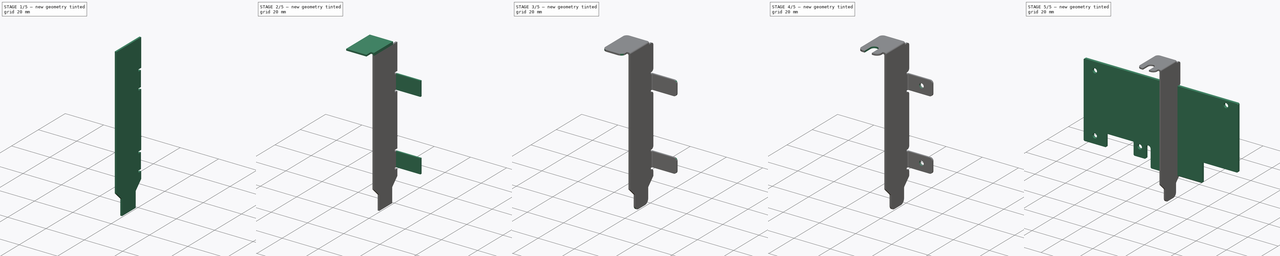
[diagram: build sequence overview — one tinted view per stage of 5, left to right]
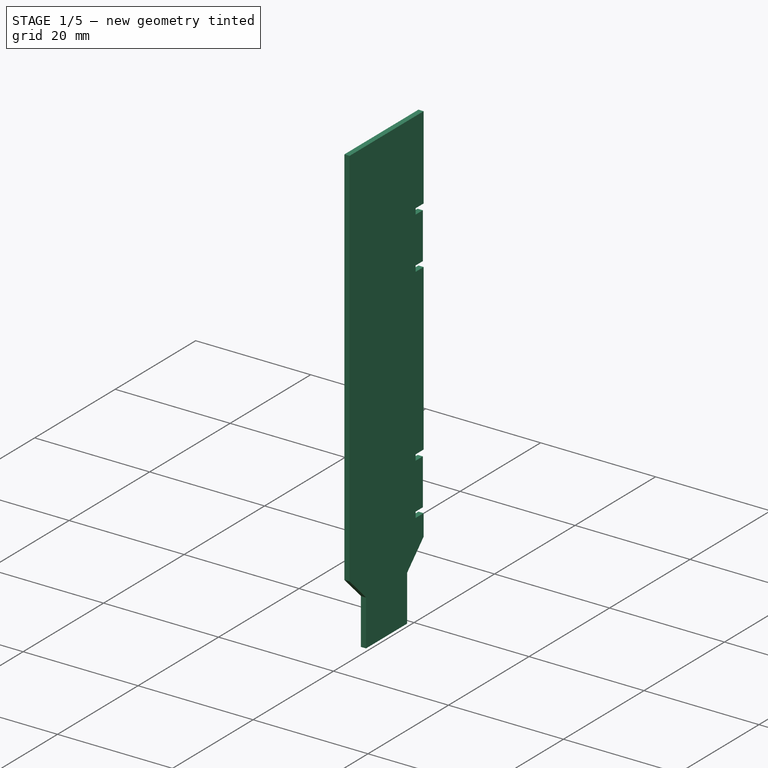
[diagram: stage 1 of 5 — iso view after this stage's code; geometry added in this stage tinted green]
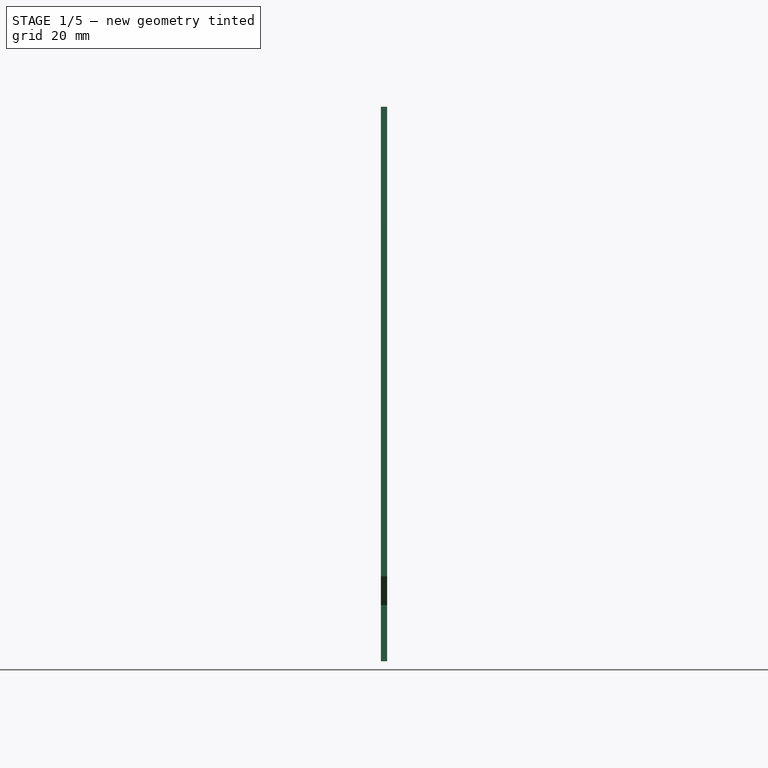
[diagram: stage 1 of 5 — front view after this stage's code; geometry added in this stage tinted green]
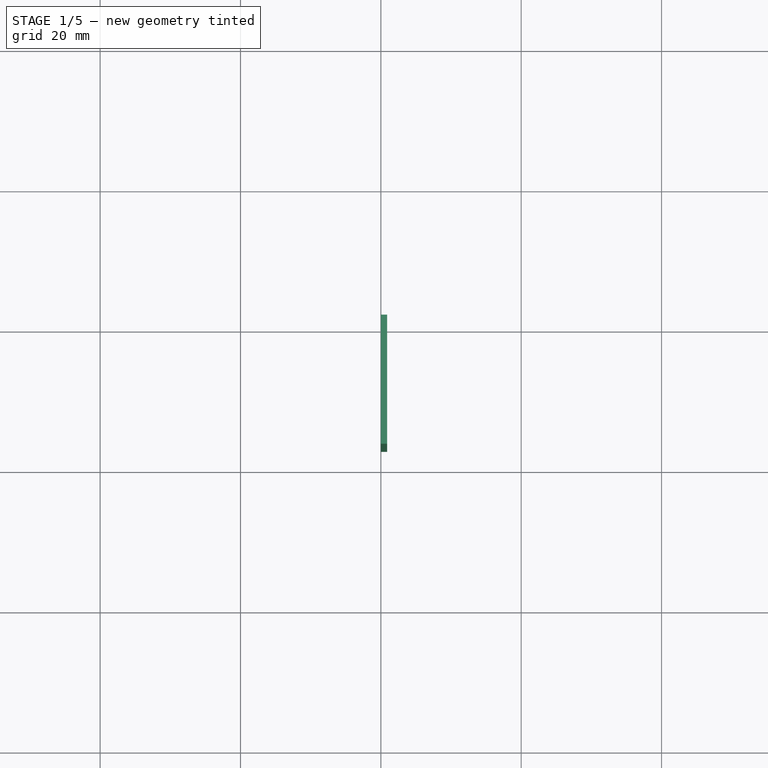
[diagram: stage 1 of 5 — top view after this stage's code; geometry added in this stage tinted green]
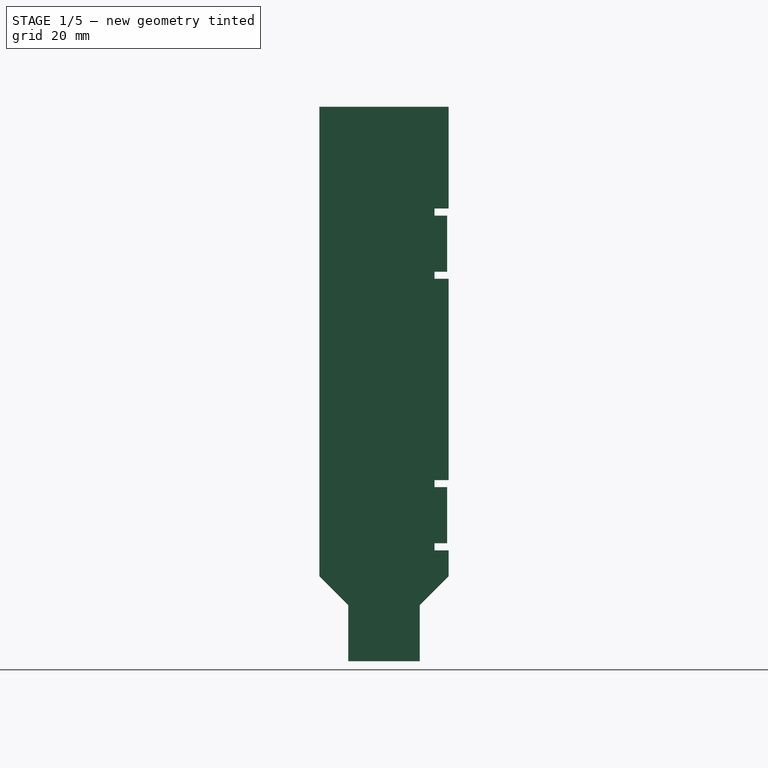
[diagram: stage 1 of 5 — right view after this stage's code; geometry added in this stage tinted green]
FCSTD DOCUMENT  (FreeCAD 0.17R13541 (Git))
Label: pcie_4x
License: All rights reserved
LicenseURL: http://en.wikipedia.org/wiki/All_rights_reserved
objects: Sketcher::SketchObject×11, PartDesign::Pad×7, PartDesign::Pocket×6, PartDesign::Fillet×6, PartDesign::Chamfer×2, PartDesign::Body×2, App::Part×2
note: 47 computed .brp shape members not serialized (recipe doc carries the construction recipe); baked Part::Feature solids carry a one-line shape summary decoded from their .brp

FEATURE [PartDesign::Body] Body  label="PCB"
  Group = -> [Sketch,Pad,Chamfer,Chamfer001,Sketch001,Pocket]
  Origin = -> Origin001
  Tip = -> Pocket
FEATURE [App::Part] Part  label="pcie_4x"
  Group = -> [Body]
  License = CC BY 3.0
  LicenseURL = http://creativecommons.org/licenses/by/3.0/
  Origin = -> Origin
FEATURE [Sketcher::SketchObject] Sketch002
  MapMode = 5
  Placement = pos=(0,0,0) rot=(0.57735,0.57735,0.57735;2.0944rad)
  Support = -> [YZ_Plane003]
  expr: Constraints[23] = 0.20000000000000001 + 0.90000000000000002
  expr: Constraints[20] = 45 + 90
  expr: Constraints[22] = 11.4 - 3
  sketch-geometry (8):
    g0: LineSegment StartX=1.1 StartY=3.7 StartZ=0 EndX=1.1 EndY=70.6 EndZ=0
    g1: LineSegment StartX=1.1 StartY=70.6 StartZ=0 EndX=-17.3 EndY=70.6 EndZ=0
    g2: LineSegment StartX=-17.3 StartY=70.6 StartZ=0 EndX=-17.3 EndY=3.7 EndZ=0
    g3: LineSegment StartX=-17.3 StartY=3.7 StartZ=0 EndX=-13.2 EndY=-0.4 EndZ=0
    g4: LineSegment StartX=-13.2 StartY=-0.4 StartZ=0 EndX=-13.2 EndY=-8.4 EndZ=0
    g5: LineSegment StartX=-13.2 StartY=-8.4 StartZ=0 EndX=-3 EndY=-8.4 EndZ=0
    g6: LineSegment StartX=-3 StartY=-8.4 StartZ=0 EndX=-3 EndY=-0.4 EndZ=0
    g7: LineSegment StartX=-3 StartY=-0.4 StartZ=0 EndX=1.1 EndY=3.7 EndZ=0
  constraints (24):
    c: Vertical(g0)
    c: Coincident(g0,g1)
    c: Horizontal(g1)
    c: Coincident(g1,g2)
    c: Vertical(g2)
    c: Coincident(g2,g3)
    c: Coincident(g3,g4)
    c: Vertical(g4)
    c: Coincident(g4,g5)
    c: Horizontal(g5)
    c: Coincident(g5,g6)
    c: Vertical(g6)
    c: Coincident(g6,g7)
    c: Coincident(g0,g7)
    c: Distance(g1) = 18.4
    c: DistanceY(g4,g1) = 79
    c: Equal(g2,g0)
    c: Equal(g4,g6)
    c: Distance(g4) = 8
    c: Equal(g3,g7)
    c: Angle(g3,g4) = 2.35619
    c: Distance(g5) = 10.2
    c: DistanceY(g5,g-1) = 8.4
    c: DistanceX(g-1,g0) = 1.1
FEATURE [PartDesign::Pad] Pad001
  Length = 0.9
  Length2 = 100
  Placement = pos=(0,0,0) rot=(0.57735,0.57735,0.57735;2.0944rad)
  Profile = -> Sketch002
  Type = 0
FEATURE [Sketcher::SketchObject] Sketch003
  ExternalGeometry = -> [Pad001]
  MapMode = 5
  Placement = pos=(0,1.1,0) rot=(0.57735,0.57735,0.57735;4.18879rad)
  Support = -> [Pad001]
  sketch-geometry (16):
    g0: LineSegment StartX=56.1 StartY=0.9 StartZ=0 EndX=55.1 EndY=0.9 EndZ=0
    g1: LineSegment StartX=55.1 StartY=0.9 StartZ=0 EndX=55.1 EndY=0 EndZ=0
    g2: LineSegment StartX=55.1 StartY=0 StartZ=0 EndX=56.1 EndY=0 EndZ=0
    g3: LineSegment StartX=56.1 StartY=0 StartZ=0 EndX=56.1 EndY=0.9 EndZ=0
    g4: LineSegment StartX=47.1 StartY=0.9 StartZ=0 EndX=46.1 EndY=0.9 EndZ=0
    g5: LineSegment StartX=46.1 StartY=0.9 StartZ=0 EndX=46.1 EndY=0 EndZ=0
    g6: LineSegment StartX=46.1 StartY=0 StartZ=0 EndX=47.1 EndY=0 EndZ=0
    g7: LineSegment StartX=47.1 StartY=0 StartZ=0 EndX=47.1 EndY=0.9 EndZ=0
    g8: LineSegment StartX=7.4 StartY=0.9 StartZ=0 EndX=8.4 EndY=0.9 EndZ=0
    g9: LineSegment StartX=8.4 StartY=0.9 StartZ=0 EndX=8.4 EndY=0 EndZ=0
    g10: LineSegment StartX=8.4 StartY=0 StartZ=0 EndX=7.4 EndY=0 EndZ=0
    g11: LineSegment StartX=7.4 StartY=0 StartZ=0 EndX=7.4 EndY=0.9 EndZ=0
    g12: LineSegment StartX=17.4 StartY=0.9 StartZ=0 EndX=16.4 EndY=0.9 EndZ=0
    g13: LineSegment StartX=16.4 StartY=0.9 StartZ=0 EndX=16.4 EndY=0 EndZ=0
    g14: LineSegment StartX=16.4 StartY=0 StartZ=0 EndX=17.4 EndY=0 EndZ=0
    g15: LineSegment StartX=17.4 StartY=0 StartZ=0 EndX=17.4 EndY=0.9 EndZ=0
  constraints (48):
    c: Coincident(g0,g1)
    c: Coincident(g1,g2)
    c: Coincident(g2,g3)
    c: Coincident(g3,g0)
    c: Horizontal(g0)
    c: Horizontal(g2)
    c: Vertical(g1)
    c: Vertical(g3)
    c: PointOnObject(g0,g-3)
    c: PointOnObject(g1,g-4)
    c: Coincident(g4,g5)
    c: Coincident(g5,g6)
    c: Coincident(g6,g7)
    c: Coincident(g7,g4)
    c: Horizontal(g4)
    c: Horizontal(g6)
    c: Vertical(g5)
    c: Vertical(g7)
    c: PointOnObject(g4,g-3)
    c: PointOnObject(g5,g-4)
    c: Coincident(g8,g9)
    c: Coincident(g9,g10)
    c: Coincident(g10,g11)
    c: Coincident(g11,g8)
    c: Horizontal(g8)
    c: Horizontal(g10)
    c: Vertical(g9)
    c: Vertical(g11)
    c: PointOnObject(g8,g-3)
    c: PointOnObject(g9,g-4)
    c: Coincident(g12,g13)
    c: Coincident(g13,g14)
    c: Coincident(g14,g15)
    c: Coincident(g15,g12)
    c: Horizontal(g12)
    c: Horizontal(g14)
    c: Vertical(g13)
    c: Vertical(g15)
    c: PointOnObject(g12,g-3)
    c: PointOnObject(g13,g-4)
    c: Distance(g0) = 1
    c: Equal(g0,g4)
    c: Equal(g4,g12)
    c: Equal(g12,g8)
    c: DistanceX(g4,g0) = 8
    c: DistanceX(g0,g-5) = 15.5
    c: DistanceX(g8,g0) = 46.7
    c: DistanceX(g8,g12) = 8
FEATURE [PartDesign::Pocket] Pocket001
  BaseFeature = -> Pad001
  Length = 2
  Length2 = 100
  Placement = pos=(0,0,0) rot=(0.57735,0.57735,0.57735;2.0944rad)
  Profile = -> Sketch003
  Type = 0
FEATURE [PartDesign::Pocket] Pocket002
  BaseFeature = -> Pocket001
  Length = 0.2
  Length2 = 100
  Placement = pos=(0,0,0) rot=(0.57735,0.57735,0.57735;2.0944rad)
  Profile = -> Pocket001 [Face16]
  Type = 0
FEATURE [PartDesign::Pocket] Pocket003
  BaseFeature = -> Pocket002
  Length = 0.2
  Length2 = 100
  Placement = pos=(0,0,0) rot=(0.57735,0.57735,0.57735;2.0944rad)
  Profile = -> Pocket002 [Face24]
  Type = 0
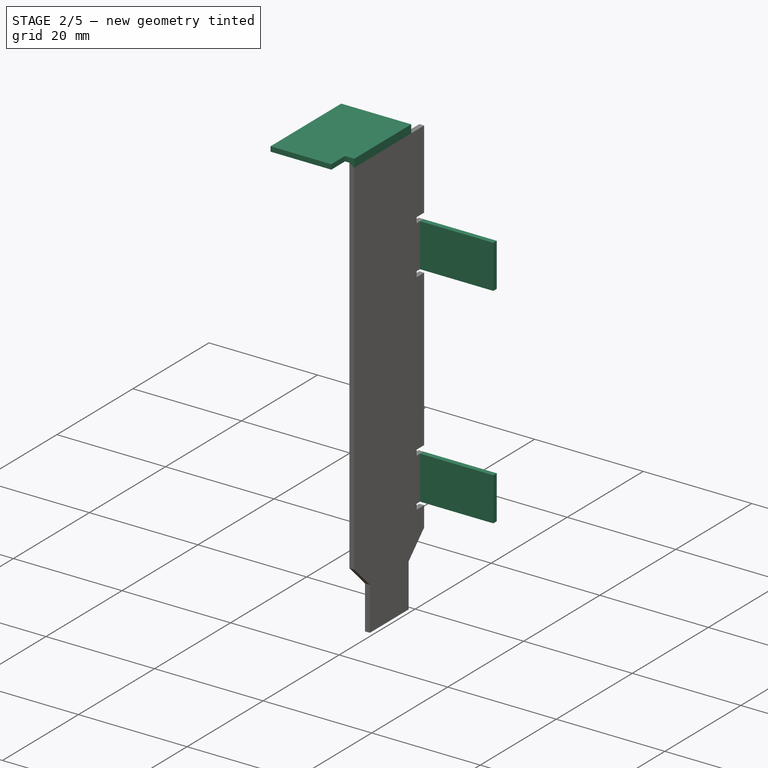
[diagram: stage 2 of 5 — iso view after this stage's code; geometry added in this stage tinted green]
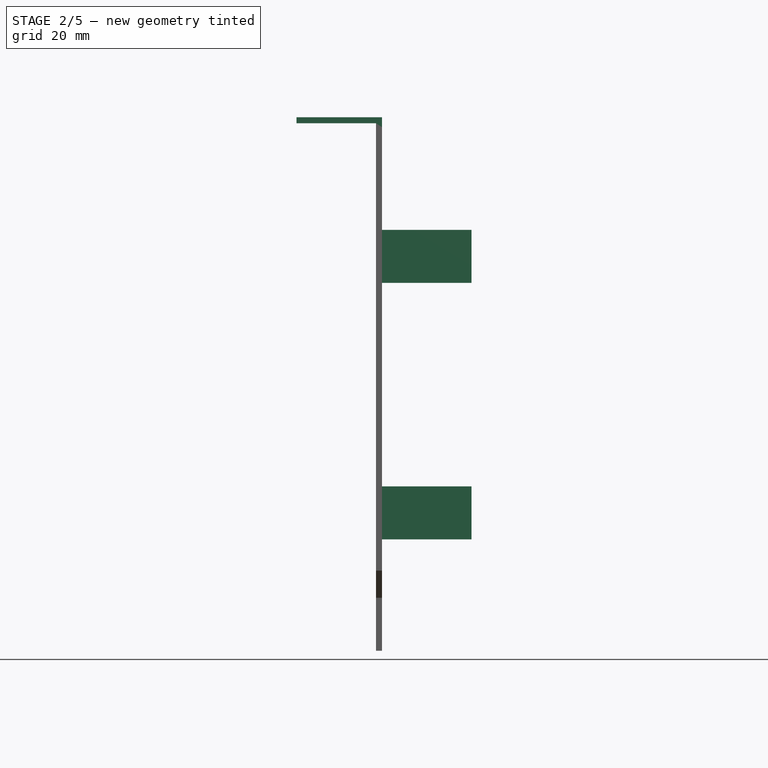
[diagram: stage 2 of 5 — front view after this stage's code; geometry added in this stage tinted green]
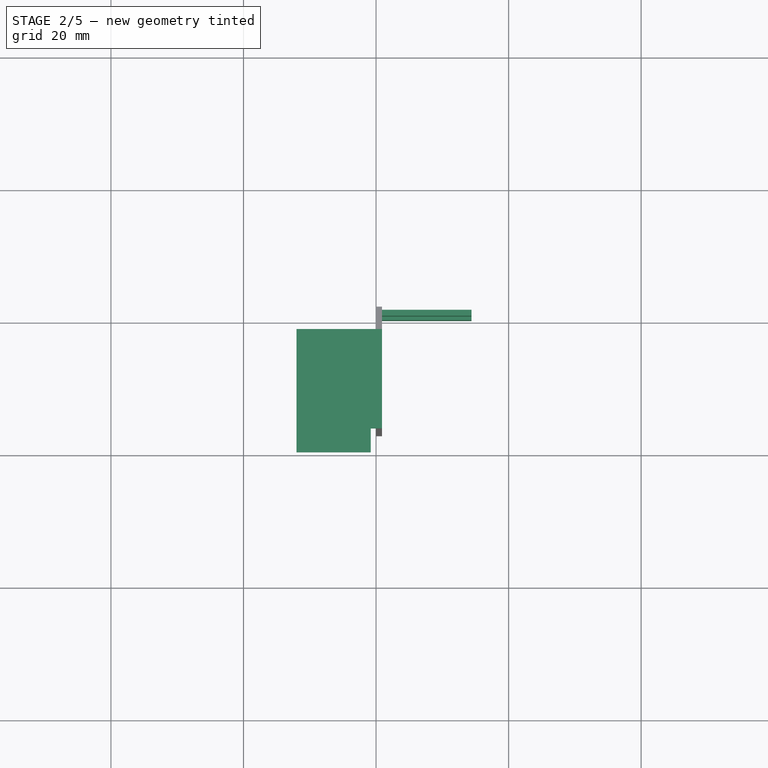
[diagram: stage 2 of 5 — top view after this stage's code; geometry added in this stage tinted green]
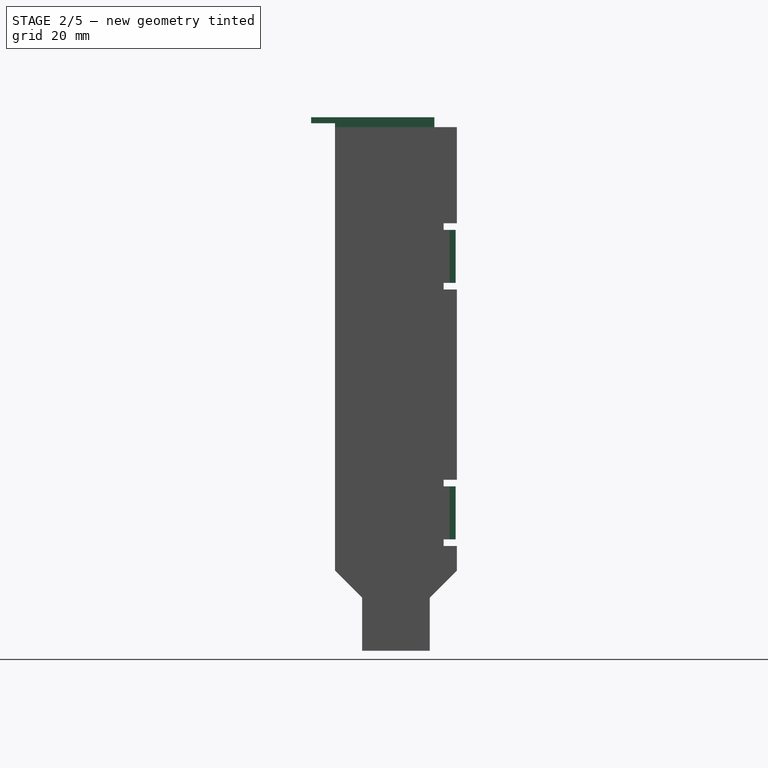
[diagram: stage 2 of 5 — right view after this stage's code; geometry added in this stage tinted green]
FEATURE [Sketcher::SketchObject] Sketch004
  ExternalGeometry = -> [Pocket003]
  MapMode = 5
  Placement = pos=(0.9,0,0) rot=(0.57735,0.57735,0.57735;2.0944rad)
  Support = -> [Pocket003]
  sketch-geometry (8):
    g0: LineSegment StartX=0 StartY=55.1 StartZ=0 EndX=0.9 EndY=55.1 EndZ=0
    g1: LineSegment StartX=0.9 StartY=55.1 StartZ=0 EndX=0.9 EndY=47.1 EndZ=0
    g2: LineSegment StartX=0.9 StartY=47.1 StartZ=0 EndX=0 EndY=47.1 EndZ=0
    g3: LineSegment StartX=0 StartY=47.1 StartZ=0 EndX=0 EndY=55.1 EndZ=0
    g4: LineSegment StartX=0 StartY=16.4 StartZ=0 EndX=0.9 EndY=16.4 EndZ=0
    g5: LineSegment StartX=0.9 StartY=16.4 StartZ=0 EndX=0.9 EndY=8.4 EndZ=0
    g6: LineSegment StartX=0.9 StartY=8.4 StartZ=0 EndX=0 EndY=8.4 EndZ=0
    g7: LineSegment StartX=0 StartY=8.4 StartZ=0 EndX=0 EndY=16.4 EndZ=0
  constraints (22):
    c: Coincident(g0,g1)
    c: Coincident(g1,g2)
    c: Coincident(g2,g3)
    c: Coincident(g3,g0)
    c: Horizontal(g0)
    c: Horizontal(g2)
    c: Vertical(g1)
    c: Vertical(g3)
    c: Coincident(g4,g5)
    c: Coincident(g5,g6)
    c: Coincident(g6,g7)
    c: Coincident(g7,g4)
    c: Horizontal(g4)
    c: Horizontal(g6)
    c: Vertical(g5)
    c: Vertical(g7)
    c: Coincident(g0,g-3)
    c: Coincident(g1,g-3)
    c: Coincident(g4,g-4)
    c: Coincident(g5,g-4)
    c: Equal(g2,g4)
    c: Distance(g0) = 0.9
FEATURE [PartDesign::Pad] Pad002
  BaseFeature = -> Pocket003
  Length = 13.5
  Length2 = 100
  Placement = pos=(0,0,0) rot=(0.57735,0.57735,0.57735;2.0944rad)
  Profile = -> Sketch004
  Type = 0
  expr: Length = 14.4 - 0.90000000000000002
FEATURE [Sketcher::SketchObject] Sketch005
  ExternalGeometry = -> [Pad002]
  MapMode = 5
  Placement = pos=(0,0,70.6) rot=(0,0,-1;1.5708rad)
  Support = -> [Pad002]
  sketch-geometry (4):
    g0: LineSegment StartX=17.3 StartY=0.9 StartZ=0 EndX=2.3 EndY=0.9 EndZ=0
    g1: LineSegment StartX=2.3 StartY=0.9 StartZ=0 EndX=2.3 EndY=0 EndZ=0
    g2: LineSegment StartX=2.3 StartY=0 StartZ=0 EndX=17.3 EndY=0 EndZ=0
    g3: LineSegment StartX=17.3 StartY=0 StartZ=0 EndX=17.3 EndY=0.9 EndZ=0
  constraints (11):
    c: Coincident(g0,g1)
    c: Coincident(g1,g2)
    c: Coincident(g2,g3)
    c: Coincident(g3,g0)
    c: Horizontal(g0)
    c: Horizontal(g2)
    c: Vertical(g1)
    c: Vertical(g3)
    c: Coincident(g-3,g0)
    c: Coincident(g-3,g2)
    c: Distance(g0) = 15
FEATURE [PartDesign::Pad] Pad003
  BaseFeature = -> Pad002
  Length = 1.5
  Length2 = 100
  Placement = pos=(0,0,0) rot=(0.57735,0.57735,0.57735;2.0944rad)
  Profile = -> Sketch005
  Type = 0
FEATURE [Sketcher::SketchObject] Sketch006
  ExternalGeometry = -> [Pad003]
  MapMode = 5
  Placement = pos=(0,0,0) rot=(0.57735,0.57735,-0.57735;4.18879rad)
  Support = -> [Pad003]
  sketch-geometry (4):
    g0: LineSegment StartX=-17.3 StartY=-71.2 StartZ=0 EndX=-2.3 EndY=-71.2 EndZ=0
    g1: LineSegment StartX=-2.3 StartY=-71.2 StartZ=0 EndX=-2.3 EndY=-72.1 EndZ=0
    g2: LineSegment StartX=-2.3 StartY=-72.1 StartZ=0 EndX=-17.3 EndY=-72.1 EndZ=0
    g3: LineSegment StartX=-17.3 StartY=-72.1 StartZ=0 EndX=-17.3 EndY=-71.2 EndZ=0
  constraints (11):
    c: Coincident(g0,g1)
    c: Coincident(g1,g2)
    c: Coincident(g2,g3)
    c: Coincident(g3,g0)
    c: Horizontal(g0)
    c: Horizontal(g2)
    c: Vertical(g1)
    c: Vertical(g3)
    c: Coincident(g-3,g2)
    c: Coincident(g1,g-3)
    c: Distance(g1) = 0.9
FEATURE [PartDesign::Pad] Pad004
  BaseFeature = -> Pad003
  Length = 12
  Length2 = 100
  Placement = pos=(0,0,0) rot=(0.57735,0.57735,0.57735;2.0944rad)
  Profile = -> Sketch006
  Type = 0
FEATURE [Sketcher::SketchObject] Sketch007
  ExternalGeometry = -> [Pad004]
  MapMode = 5
  Placement = pos=(0,-17.3,0) rot=(0.57735,0.57735,-0.57735;2.0944rad)
  Support = -> [Pad004]
  sketch-geometry (4):
    g0: LineSegment StartX=-72.1 StartY=-0.8 StartZ=0 EndX=-71.2 EndY=-0.8 EndZ=0
    g1: LineSegment StartX=-71.2 StartY=-0.8 StartZ=0 EndX=-71.2 EndY=-12 EndZ=0
    g2: LineSegment StartX=-71.2 StartY=-12 StartZ=0 EndX=-72.1 EndY=-12 EndZ=0
    g3: LineSegment StartX=-72.1 StartY=-12 StartZ=0 EndX=-72.1 EndY=-0.8 EndZ=0
  constraints (11):
    c: Coincident(g0,g1)
    c: Coincident(g1,g2)
    c: Coincident(g2,g3)
    c: Coincident(g3,g0)
    c: Horizontal(g0)
    c: Horizontal(g2)
    c: Vertical(g1)
    c: Vertical(g3)
    c: Coincident(g-3,g2)
    c: Coincident(g-3,g1)
    c: Distance(g1) = 11.2
FEATURE [PartDesign::Pad] Pad005
  BaseFeature = -> Pad004
  Length = 3.6
  Length2 = 100
  Placement = pos=(0,0,0) rot=(0.57735,0.57735,0.57735;2.0944rad)
  Profile = -> Sketch007
  Type = 0
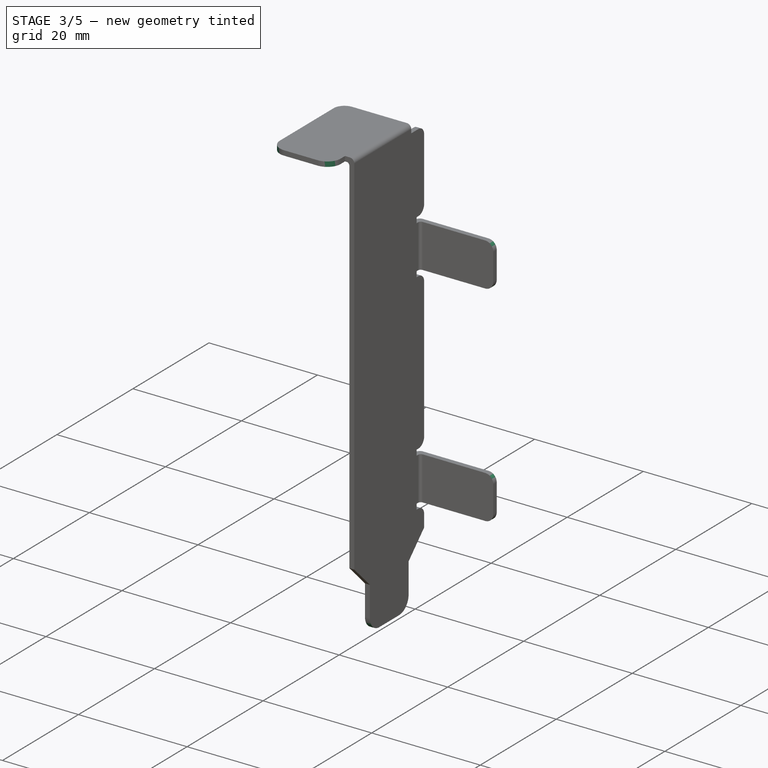
[diagram: stage 3 of 5 — iso view after this stage's code; geometry added in this stage tinted green]
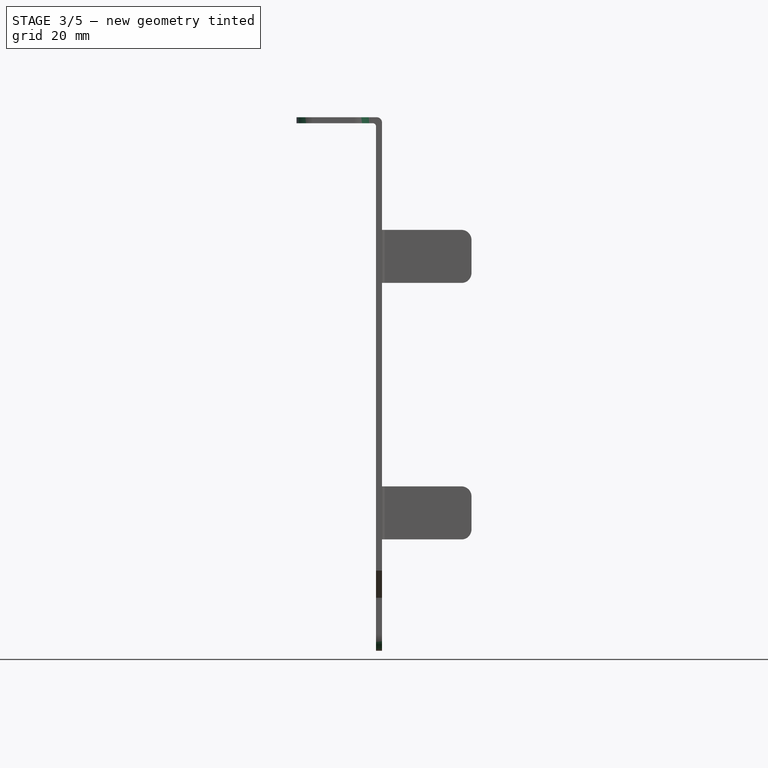
[diagram: stage 3 of 5 — front view after this stage's code; geometry added in this stage tinted green]
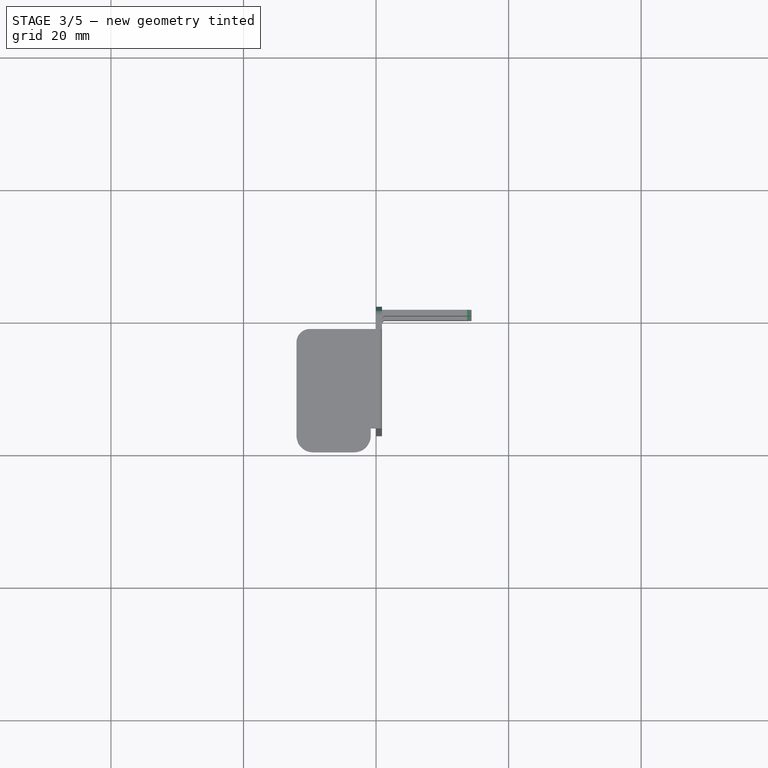
[diagram: stage 3 of 5 — top view after this stage's code; geometry added in this stage tinted green]
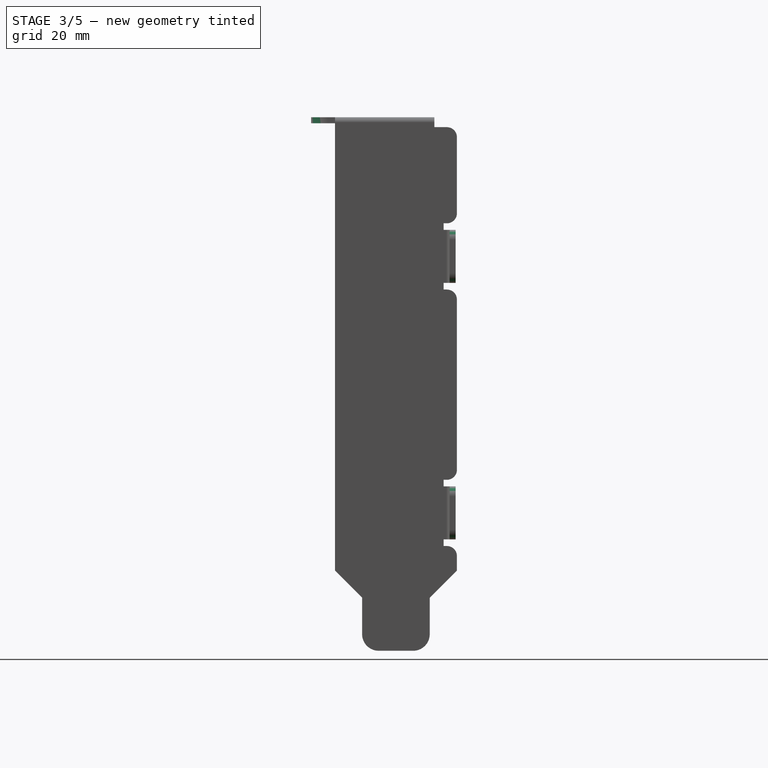
[diagram: stage 3 of 5 — right view after this stage's code; geometry added in this stage tinted green]
FEATURE [PartDesign::Fillet] Fillet
  Base = -> Pad005 [Edge46,Edge45,Edge61]
  BaseFeature = -> Pad005
  Placement = pos=(0,0,0) rot=(0.57735,0.57735,0.57735;2.0944rad)
  Radius = 0.5
FEATURE [PartDesign::Fillet] Fillet001
  Base = -> Fillet [Edge80,Edge95,Edge94]
  BaseFeature = -> Fillet
  Placement = pos=(0,0,0) rot=(0.57735,0.57735,0.57735;2.0944rad)
  Radius = 0.8
FEATURE [PartDesign::Fillet] Fillet002
  Base = -> Fillet001 [Edge63,Edge110,Edge113,Edge120,Edge68,Edge71,Edge73,Edge97,Edge96]
  BaseFeature = -> Fillet001
  Placement = pos=(0,0,0) rot=(0.57735,0.57735,0.57735;2.0944rad)
  Radius = 1.5
FEATURE [PartDesign::Fillet] Fillet003
  Base = -> Fillet002 [Edge158]
  BaseFeature = -> Fillet002
  Placement = pos=(0,0,0) rot=(0.57735,0.57735,0.57735;2.0944rad)
  Radius = 2
FEATURE [PartDesign::Fillet] Fillet004
  Base = -> Fillet003 [Edge34,Edge37,Edge119,Edge124]
  BaseFeature = -> Fillet003
  Placement = pos=(0,0,0) rot=(0.57735,0.57735,0.57735;2.0944rad)
  Radius = 2.5
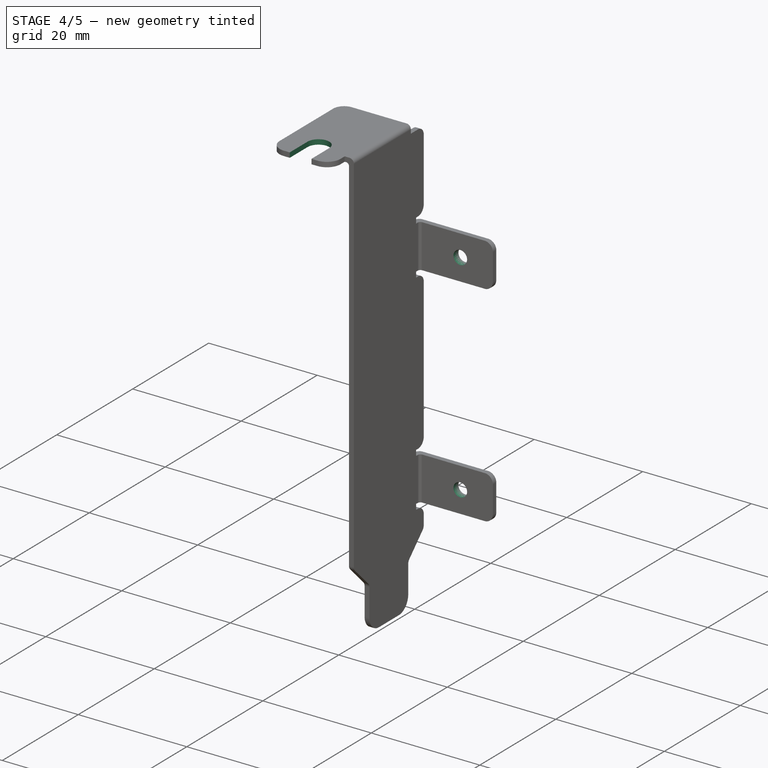
[diagram: stage 4 of 5 — iso view after this stage's code; geometry added in this stage tinted green]
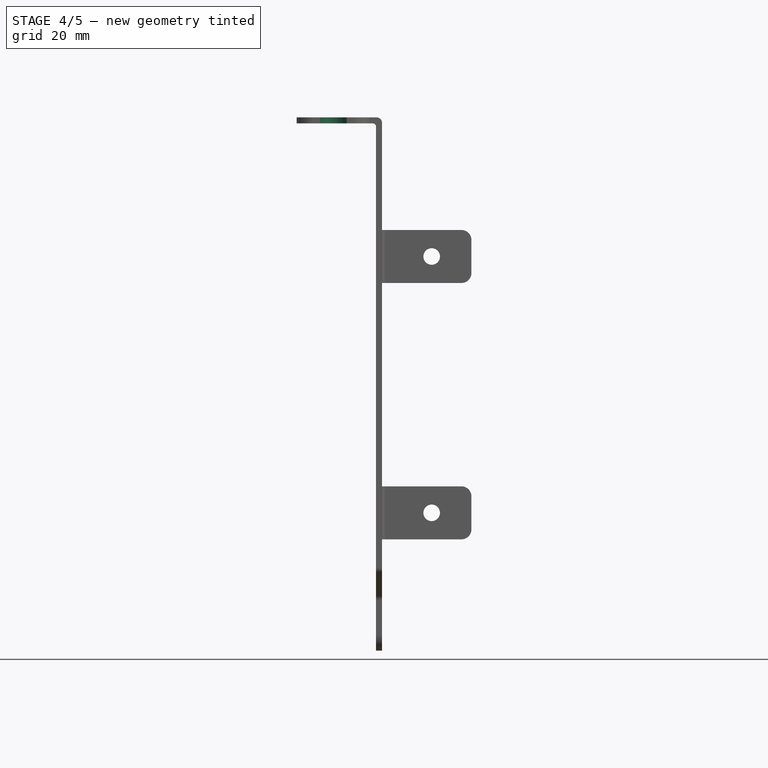
[diagram: stage 4 of 5 — front view after this stage's code; geometry added in this stage tinted green]
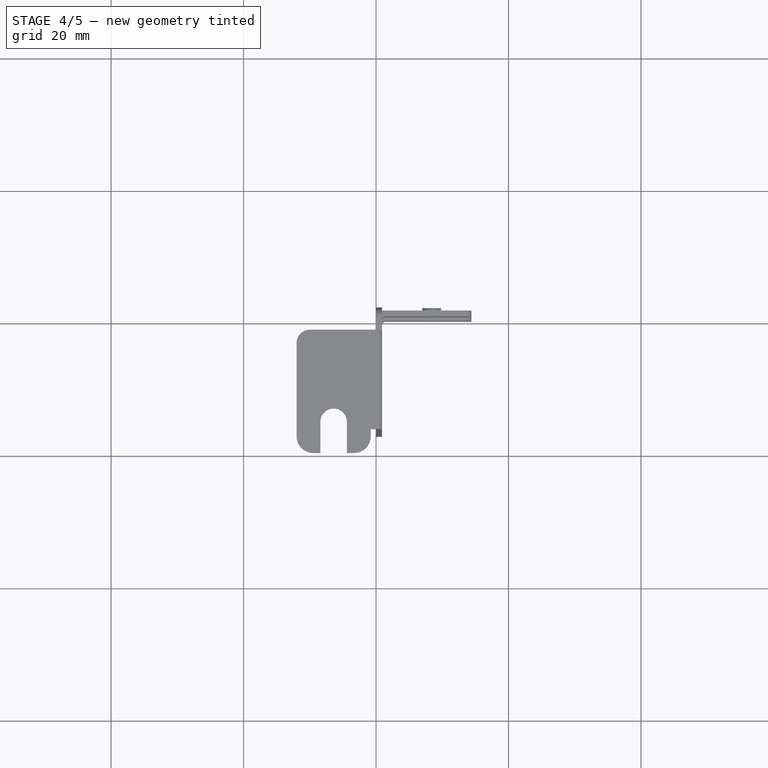
[diagram: stage 4 of 5 — top view after this stage's code; geometry added in this stage tinted green]
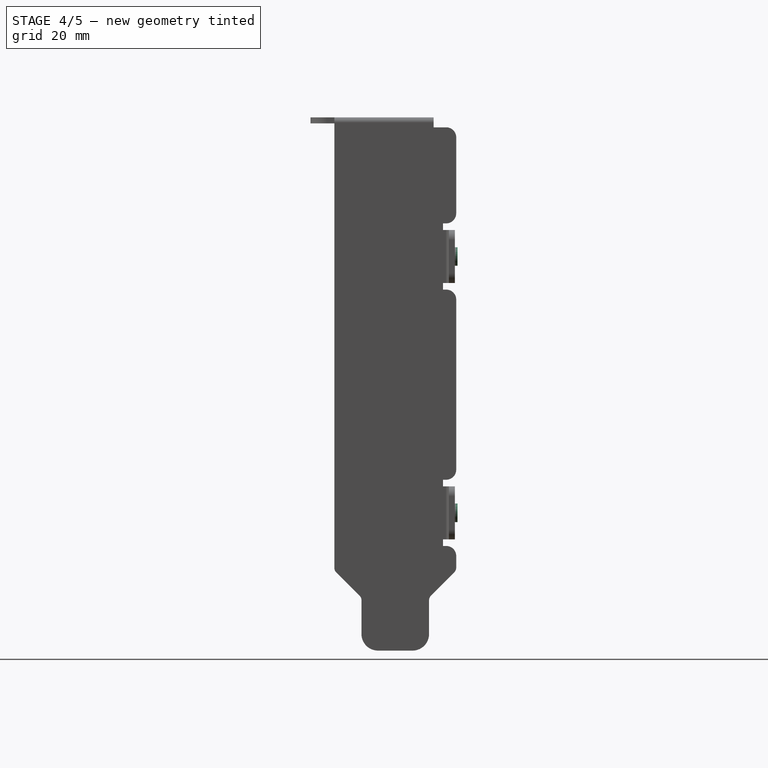
[diagram: stage 4 of 5 — right view after this stage's code; geometry added in this stage tinted green]
FEATURE [PartDesign::Fillet] Fillet005
  Base = -> Fillet004 [Edge121,Edge119,Edge54,Edge116]
  BaseFeature = -> Fillet004
  Placement = pos=(0,0,0) rot=(0.57735,0.57735,0.57735;2.0944rad)
  Radius = 1
FEATURE [Sketcher::SketchObject] Sketch008
  ExternalGeometry = -> [Fillet005]
  MapMode = 5
  Placement = pos=(0,0,72.1) rot=(0,0,-1;1.5708rad)
  Support = -> [Fillet005]
  sketch-geometry (5):
    g0: LineSegment StartX=20.9 StartY=-4.4 StartZ=0 EndX=16.2 EndY=-4.4 EndZ=0
    g1: LineSegment StartX=20.9 StartY=-8.4 StartZ=0 EndX=16.2 EndY=-8.4 EndZ=0
    g2: ArcOfCircle CenterX=16.2 CenterY=-6.4 CenterZ=0 NormalX=0 NormalY=0 NormalZ=1 AngleXU=0 Radius=2 StartAngle=1.5708 EndAngle=4.71239
    g3: GeomPoint X=20.9 Y=-6.4 Z=0
    g4: LineSegment StartX=20.9 StartY=-4.4 StartZ=0 EndX=20.9 EndY=-8.4 EndZ=0
  constraints (15):
    c: PointOnObject(g0,g-3)
    c: Horizontal(g0)
    c: PointOnObject(g1,g-3)
    c: Horizontal(g1)
    c: Vertical(g0,g1)
    c: Coincident(g2,g1)
    c: Coincident(g2,g0)
    c: Vertical(g0,g2)
    c: DistanceY(g1,g0) = 4
    c: PointOnObject(g3,g-3)
    c: Symmetric(g-3,g-3,g3)
    c: Horizontal(g2,g3)
    c: Distance(g0) = 4.7
    c: Coincident(g4,g0)
    c: Coincident(g4,g1)
FEATURE [PartDesign::Pocket] Pocket004
  BaseFeature = -> Fillet005
  Length = 5
  Length2 = 100
  Placement = pos=(0,0,0) rot=(0.57735,0.57735,0.57735;2.0944rad)
  Profile = -> Sketch008
  Type = 1
FEATURE [Sketcher::SketchObject] Sketch009
  ExternalGeometry = -> [Pocket004]
  MapMode = 5
  Placement = pos=(0,0,0) rot=(0.57735,0.57735,-0.57735;2.0944rad)
  Support = -> [Pocket004]
  sketch-geometry (4):
    g0: Circle CenterX=-51.1 CenterY=8.4 CenterZ=0 NormalX=0 NormalY=0 NormalZ=1 AngleXU=0 Radius=1.4
    g1: Circle CenterX=-12.4 CenterY=8.4 CenterZ=0 NormalX=0 NormalY=0 NormalZ=1 AngleXU=0 Radius=1.4
    g2: GeomPoint X=-51.1 Y=14.4 Z=0
    g3: GeomPoint X=-12.4 Y=14.4 Z=0
  constraints (10):
    c: Equal(g0,g1)
    c: Horizontal(g0,g1)
    c: PointOnObject(g2,g-3)
    c: PointOnObject(g3,g-4)
    c: Symmetric(g-3,g-3,g2)
    c: Symmetric(g-4,g-4,g3)
    c: Vertical(g2,g0)
    c: Vertical(g1,g3)
    c: Radius(g1) = 1.4
    c: DistanceY(g1,g-4) = 6
FEATURE [PartDesign::Pad] Pad006
  BaseFeature = -> Pocket004
  Length = 1.3
  Length2 = 100
  Placement = pos=(0,0,0) rot=(0.57735,0.57735,0.57735;2.0944rad)
  Profile = -> Sketch009
  Reversed = true
  Type = 0
FEATURE [Sketcher::SketchObject] Sketch010
  ExternalGeometry = -> [Pad006]
  MapMode = 5
  Placement = pos=(0,0,0) rot=(0.57735,0.57735,-0.57735;2.0944rad)
  Support = -> [Pad006]
  sketch-geometry (2):
    g0: Circle CenterX=-51.1 CenterY=8.4 CenterZ=0 NormalX=0 NormalY=0 NormalZ=1 AngleXU=0 Radius=1.25
    g1: Circle CenterX=-12.4 CenterY=8.4 CenterZ=0 NormalX=0 NormalY=0 NormalZ=1 AngleXU=0 Radius=1.25
  constraints (4):
    c: Coincident(g0,g-4)
    c: Coincident(g1,g-3)
    c: Equal(g1,g0)
    c: Radius(g0) = 1.25
FEATURE [PartDesign::Pocket] Pocket005
  BaseFeature = -> Pad006
  Length = 5
  Length2 = 100
  Placement = pos=(0,0,0) rot=(0.57735,0.57735,0.57735;2.0944rad)
  Profile = -> Sketch010
  Type = 1
FEATURE [PartDesign::Body] Body001  label="bracket001"
  Group = -> [Sketch002,Pad001,Sketch003,Pocket001,Pocket002,Pocket003,Sketch004,Pad002,Sketch005,Pad003,Sketch006,Pad004,Sketch007,Pad005,Fillet,Fillet001,Fillet002,Fillet003,Fillet004,Fillet005,Sketch008,Pocket004,Sketch009,Pad006,Sketch010,Pocket005]
  Origin = -> Origin003
  Placement = pos=(-62,0,0) rot=(0,0,1;0rad)
  Tip = -> Pocket005
FEATURE [App::Part] Part001  label="bracket"
  Group = -> [Body001]
  License = CC BY 3.0
  LicenseURL = http://creativecommons.org/licenses/by/3.0/
  Origin = -> Origin002
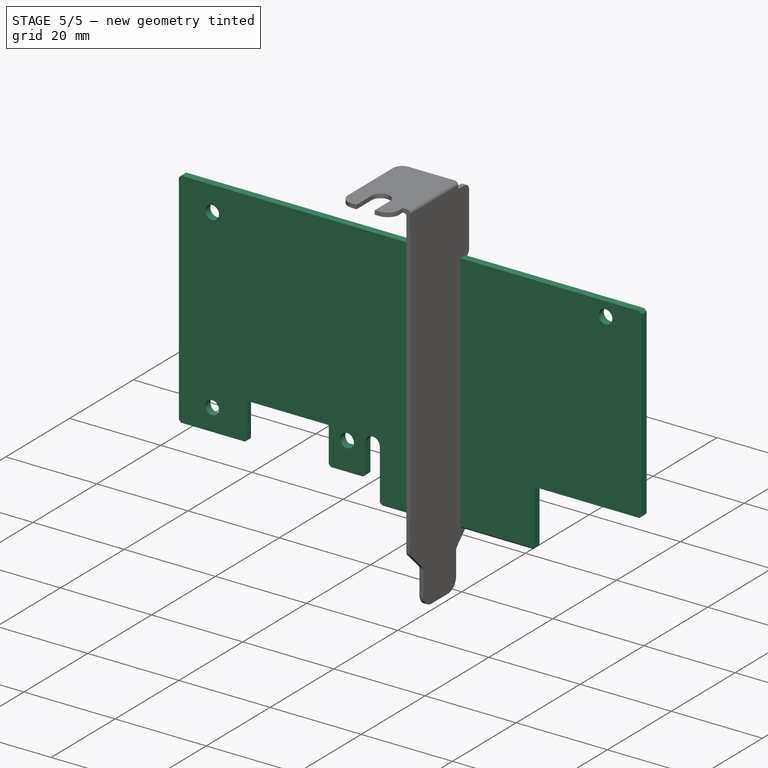
[diagram: stage 5 of 5 — iso view after this stage's code; geometry added in this stage tinted green]
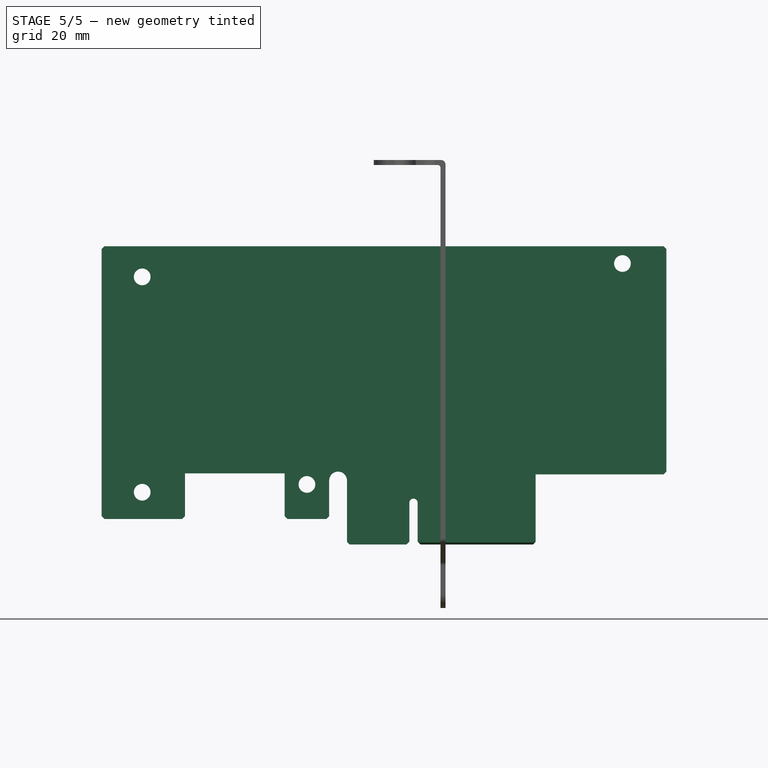
[diagram: stage 5 of 5 — front view after this stage's code; geometry added in this stage tinted green]
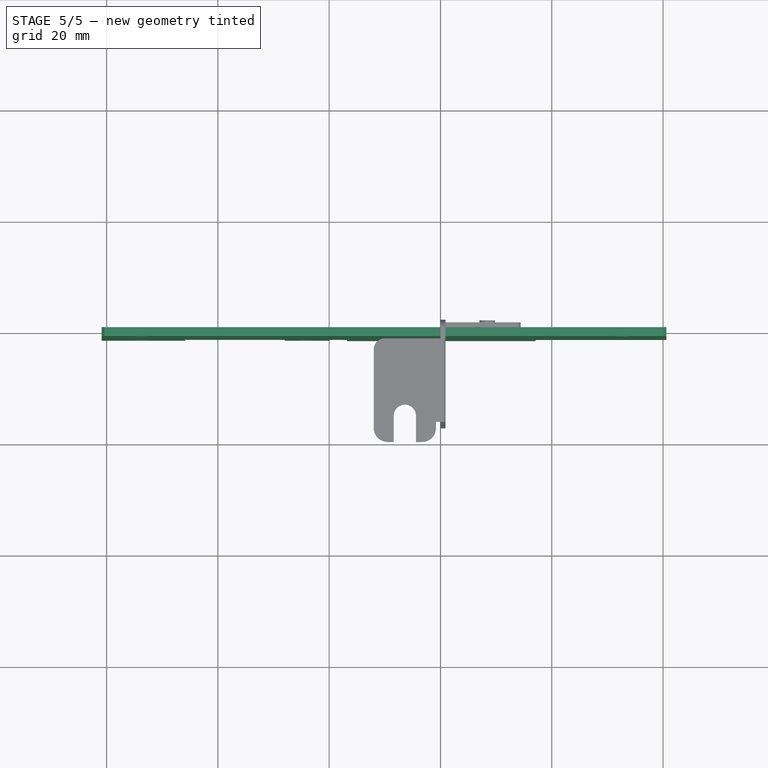
[diagram: stage 5 of 5 — top view after this stage's code; geometry added in this stage tinted green]
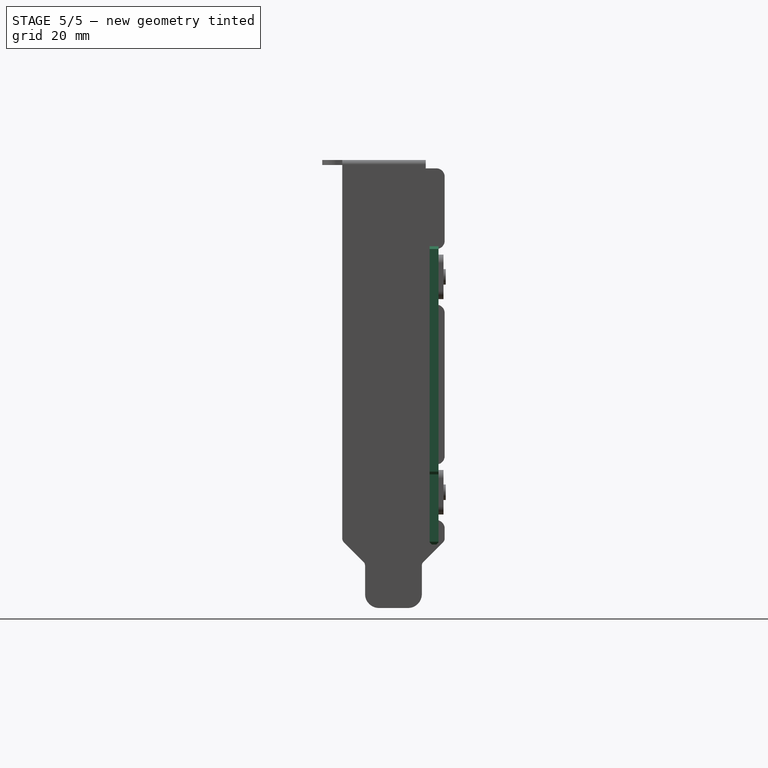
[diagram: stage 5 of 5 — right view after this stage's code; geometry added in this stage tinted green]
FEATURE [Sketcher::SketchObject] Sketch
  MapMode = 5
  Placement = pos=(0,0,0) rot=(1,0,0;1.5708rad)
  Support = -> [XZ_Plane001]
  expr: Constraints[33] = 3.2000000000000002 / 2
  sketch-geometry (18):
    g0: LineSegment StartX=-60.9 StartY=56.6 StartZ=0 EndX=-60.9 EndY=7.6 EndZ=0
    g1: LineSegment StartX=-60.9 StartY=7.6 StartZ=0 EndX=-45.9 EndY=7.6 EndZ=0
    g2: LineSegment StartX=-45.9 StartY=7.6 StartZ=0 EndX=-45.9 EndY=15.8 EndZ=0
    g3: LineSegment StartX=-45.9 StartY=15.8 StartZ=0 EndX=-28 EndY=15.8 EndZ=0
    g4: LineSegment StartX=-28 StartY=15.8 StartZ=0 EndX=-28 EndY=7.6 EndZ=0
    g5: LineSegment StartX=-28 StartY=7.6 StartZ=0 EndX=-20 EndY=7.6 EndZ=0
    g6: LineSegment StartX=-20 StartY=7.6 StartZ=0 EndX=-20 EndY=14.5 EndZ=0
    g7: ArcOfCircle CenterX=-18.4 CenterY=14.5 CenterZ=0 NormalX=0 NormalY=0 NormalZ=1 AngleXU=0 Radius=1.6 StartAngle=0 EndAngle=3.14159
    g8: LineSegment StartX=17.1 StartY=3 StartZ=0 EndX=17.1 EndY=15.6 EndZ=0
    g9: LineSegment StartX=17.1 StartY=15.6 StartZ=0 EndX=40.6 EndY=15.6 EndZ=0
    g10: LineSegment StartX=40.6 StartY=15.6 StartZ=0 EndX=40.6 EndY=56.6 EndZ=0
    g11: LineSegment StartX=40.6 StartY=56.6 StartZ=0 EndX=-60.9 EndY=56.6 EndZ=0
    g12: LineSegment StartX=-16.8 StartY=14.5 StartZ=0 EndX=-16.8 EndY=3 EndZ=0
    g13: LineSegment StartX=-16.8 StartY=3 StartZ=0 EndX=-5.6 EndY=3 EndZ=0
    g14: LineSegment StartX=-5.6 StartY=3 StartZ=0 EndX=-5.6 EndY=10.5 EndZ=0
    g15: LineSegment StartX=-4.1 StartY=10.5 StartZ=0 EndX=-4.1 EndY=3 EndZ=0
    g16: LineSegment StartX=-4.1 StartY=3 StartZ=0 EndX=17.1 EndY=3 EndZ=0
    g17: ArcOfCircle CenterX=-4.85 CenterY=10.5 CenterZ=0 NormalX=0 NormalY=0 NormalZ=1 AngleXU=0 Radius=0.75 StartAngle=6.28318 EndAngle=9.42478
  constraints (54):
    c: Vertical(g0)
    c: Horizontal(g1)
    c: Coincident(g1,g2)
    c: Vertical(g2)
    c: Coincident(g2,g3)
    c: Horizontal(g3)
    c: Coincident(g3,g4)
    c: Vertical(g4)
    c: Coincident(g4,g5)
    c: Horizontal(g5)
    c: Coincident(g5,g6)
    c: Vertical(g6)
    c: Coincident(g7,g6)
    c: Horizontal(g7,g7)
    c: Tangent(g6,g7)
    c: Vertical(g8)
    c: Coincident(g8,g9)
    c: Horizontal(g9)
    c: Coincident(g9,g10)
    c: Vertical(g10)
    c: Coincident(g10,g11)
    c: Horizontal(g11)
    c: Coincident(g11,g0)
    c: Tangent(g7,g12) = 1.5708
    c: Coincident(g12,g13)
    c: Horizontal(g13)
    c: Coincident(g13,g14)
    c: Vertical(g14)
    c: Vertical(g15)
    c: Coincident(g15,g16)
    c: Horizontal(g16)
    c: Coincident(g8,g16)
    c: Distance(g5) = 8
    c: Radius(g7) = 1.6
    c: Distance(g13) = 11.2
    c: Coincident(g0,g1)
    c: Distance(g3) = 17.9
    c: Distance(g1) = 15
    c: Horizontal(g13,g15)
    c: Horizontal(g1,g4)
    c: Distance(g13,g15) = 1.5
    c: Tangent(g14,g17) = 1.5708
    c: Coincident(g17,g15)
    c: Tangent(g17,g15)
    c: Distance(g16) = 21.2
    c: Distance(g10) = 41
    c: Distance(g11) = 101.5
    c: DistanceY(g8,g10) = 53.6
    c: Distance(g15) = 7.5
    c: Distance(g0) = 49
    c: DistanceY(g2,g0) = 40.8
    c: Distance(g12) = 11.5
    c: Distance(g17,g-2) = 4.85
    c: Distance(g-1,g16) = 3
FEATURE [PartDesign::Pad] Pad
  Length = 1.6
  Length2 = 100
  Placement = pos=(0,0,0) rot=(1,0,0;1.5708rad)
  Profile = -> Sketch
  Type = 0
FEATURE [PartDesign::Chamfer] Chamfer
  Base = -> Pad [Edge35,Edge32,Edge44,Edge47,Edge2,Edge5,Edge23,Edge20,Edge17,Edge14,Edge11]
  BaseFeature = -> Pad
  Placement = pos=(0,0,0) rot=(1,0,0;1.5708rad)
  Size = 0.5
FEATURE [PartDesign::Chamfer] Chamfer001
  Base = -> Chamfer [Edge32,Edge7,Edge37,Edge12]
  BaseFeature = -> Chamfer
  Placement = pos=(0,0,0) rot=(1,0,0;1.5708rad)
  Size = 0.4
FEATURE [Sketcher::SketchObject] Sketch001
  ExternalGeometry = -> [Chamfer]
  MapMode = 5
  Placement = pos=(0,-1.6,0) rot=(1,0,0;1.5708rad)
  Support = -> [Chamfer]
  expr: Constraints[13] = 3.2999999999999998 + 1.5
  expr: Constraints[10] = 5.7999999999999998 + 1.5
  expr: Constraints[7] = 1.6000000000000001 + 1.5
  expr: Constraints[6] = 6.4000000000000004 + 1.5
  expr: Constraints[5] = 4.7000000000000002 + 1.5
  sketch-geometry (5):
    g0: Circle CenterX=-24 CenterY=13.8 CenterZ=0 NormalX=0 NormalY=0 NormalZ=1 AngleXU=0 Radius=1.5
    g1: Circle CenterX=32.7 CenterY=53.5 CenterZ=0 NormalX=0 NormalY=0 NormalZ=1 AngleXU=0 Radius=1.5
    g2: Circle CenterX=-53.6 CenterY=51.1 CenterZ=0 NormalX=0 NormalY=0 NormalZ=1 AngleXU=0 Radius=1.5
    g3: Circle CenterX=-53.6 CenterY=12.4 CenterZ=0 NormalX=0 NormalY=0 NormalZ=1 AngleXU=0 Radius=1.5
    g4: GeomPoint X=-24 Y=7.6 Z=0
  constraints (14):
    c: Radius(g0) = 1.5
    c: Equal(g0,g1)
    c: PointOnObject(g4,g-3)
    c: Symmetric(g-3,g-3,g4)
    c: Vertical(g0,g4)
    c: Distance(g4,g0) = 6.2
    c: Distance(g1,g-5) = 7.9
    c: Distance(g1,g-4) = 3.1
    c: Equal(g0,g3)
    c: Equal(g3,g2)
    c: Distance(g2,g-6) = 7.3
    c: Vertical(g2,g3)
    c: Distance(g2,g-4) = 5.5
    c: Distance(g3,g-7) = 4.8
FEATURE [PartDesign::Pocket] Pocket
  BaseFeature = -> Chamfer001
  Length = 5
  Length2 = 100
  Placement = pos=(0,0,0) rot=(1,0,0;1.5708rad)
  Profile = -> Sketch001
  Type = 1
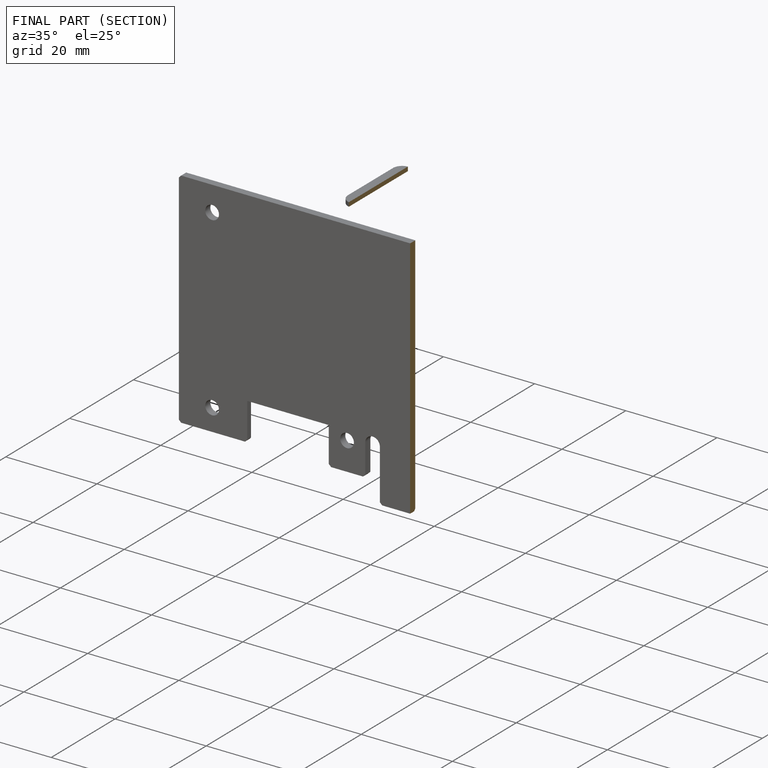
[diagram: finished part — half-section view (interior)]
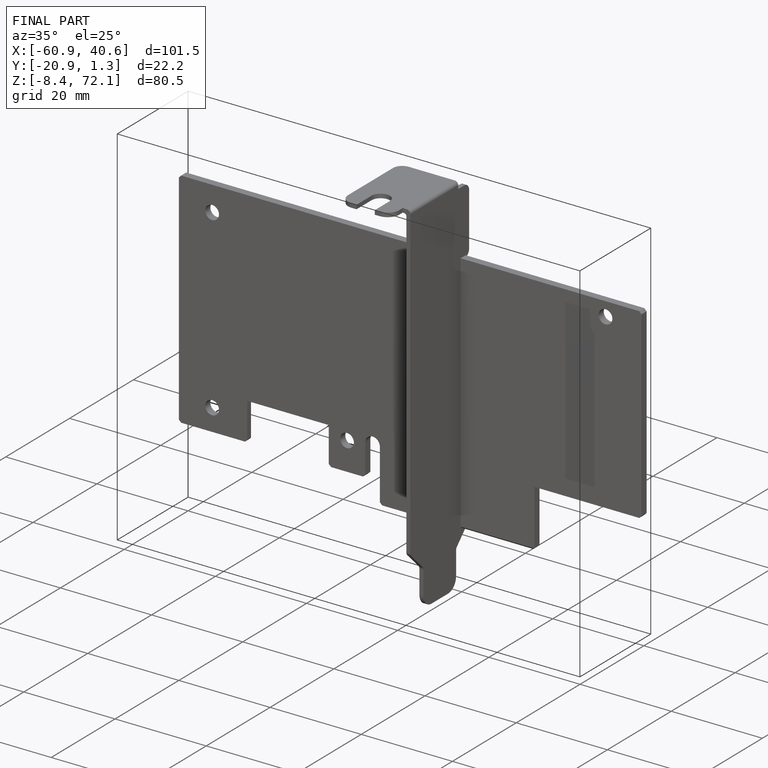
[diagram: finished part — iso view with bounding-box wireframe]
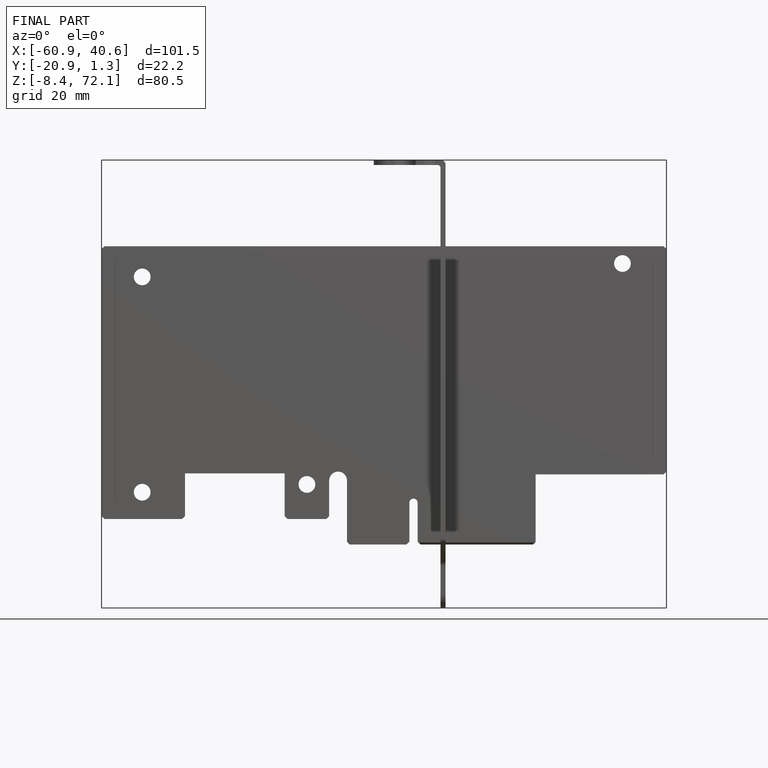
[diagram: finished part — front view with bounding-box wireframe]
